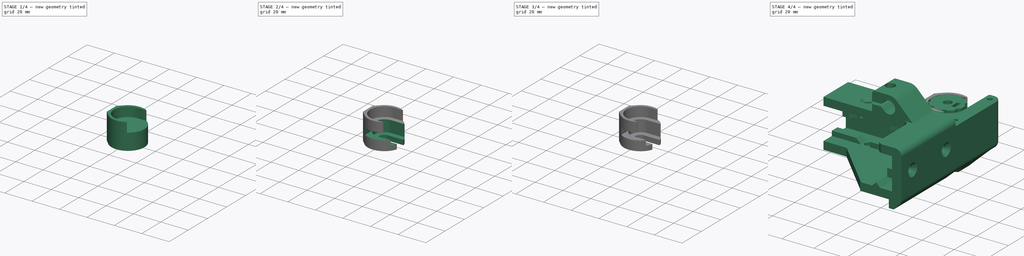
[diagram: build sequence overview — one tinted view per stage of 4, left to right]
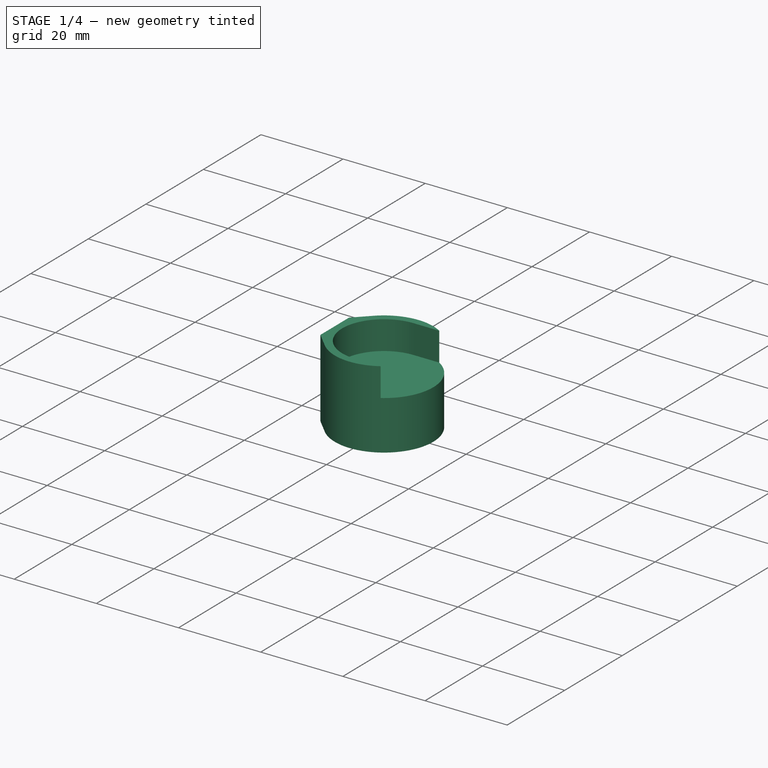
[diagram: stage 1 of 4 — iso view after this stage's code; geometry added in this stage tinted green]
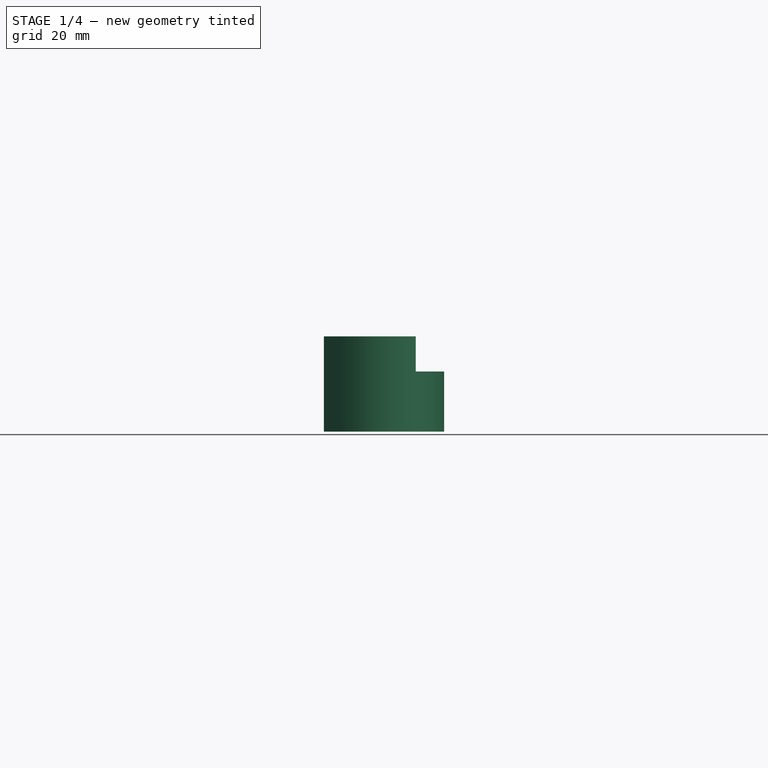
[diagram: stage 1 of 4 — front view after this stage's code; geometry added in this stage tinted green]
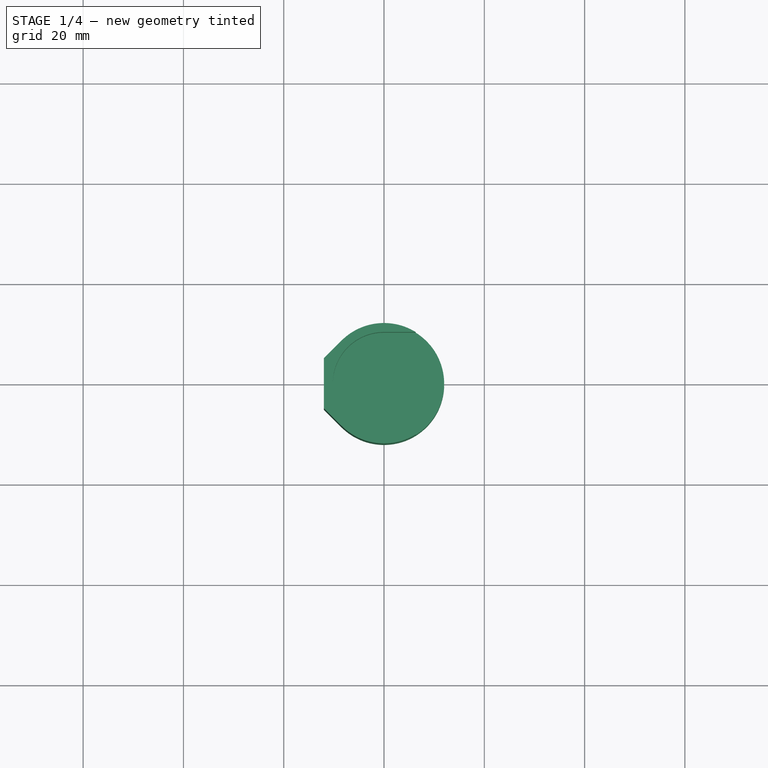
[diagram: stage 1 of 4 — top view after this stage's code; geometry added in this stage tinted green]
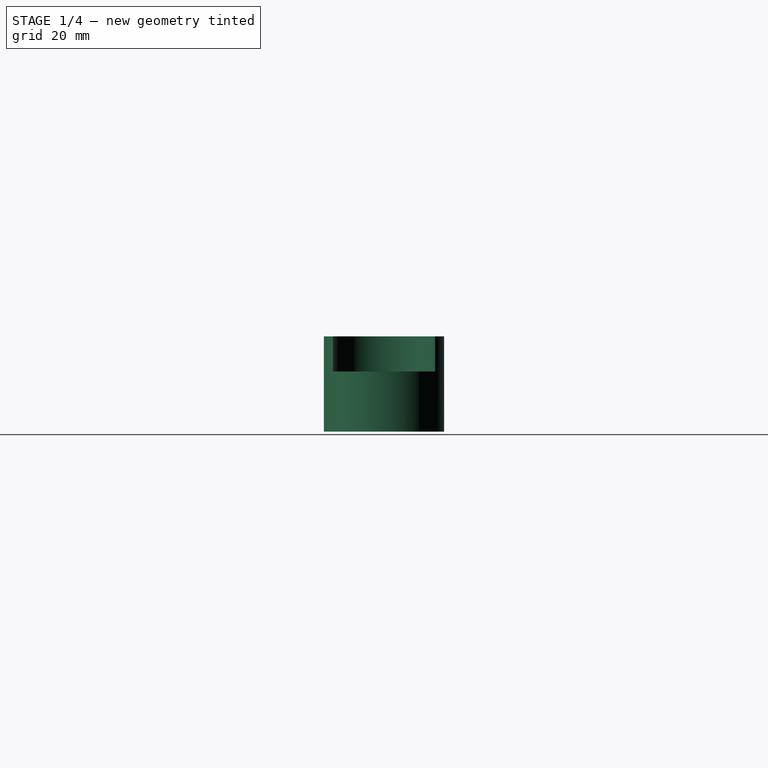
[diagram: stage 1 of 4 — right view after this stage's code; geometry added in this stage tinted green]
FCSTD DOCUMENT  (FreeCAD 0.16RUnknown)
Label: NEMAChanger
License: All rights reserved
LicenseURL: http://en.wikipedia.org/wiki/All_rights_reserved
objects: Sketcher::SketchObject×5, PartDesign::Pocket×4, App::DocumentObjectGroup×3, Part::FeaturePython×3, Part::Fillet×2, Spreadsheet::Sheet×1, PartDesign::Pad×1
note: 20 computed .brp shape members not serialized (recipe doc carries the construction recipe); baked Part::Feature solids carry a one-line shape summary decoded from their .brp

FEATURE [App::DocumentObjectGroup] Group002  label="Reference"
  Group = -> [NEMAPulley_01,BackCorner_01]
FEATURE [Sketcher::SketchObject] Sketch  label="Base"
  Placement = pos=(0,0,0) rot=(0,0,-1;1.5708rad)
  sketch-geometry (4):
    g0: ArcOfCircle CenterX=0 CenterY=0 CenterZ=0 NormalX=0 NormalY=0 NormalZ=1 Radius=12 StartAngle=5.49779 EndAngle=10.2102
    g1: LineSegment StartX=-8.48531 StartY=-8.48526 StartZ=0 EndX=-4.97056 EndY=-12 EndZ=0
    g2: LineSegment StartX=-4.97056 StartY=-12 StartZ=0 EndX=4.97056 EndY=-12 EndZ=0
    g3: LineSegment StartX=4.97056 StartY=-12 StartZ=0 EndX=8.48531 EndY=-8.48526 EndZ=0
  constraints (12):
    c: Coincident(g1,g2)
    c: Coincident(g2,g3)
    c: Horizontal(g2)
    c: Coincident(g0,g1)
    c: Coincident(g0,g3)
    c: Tangent(g3,g0)
    c: Tangent(g2,g0)
    c: Tangent(g1,g0)
    c: Perpendicular(g3,g1)
    c: Angle(g3,g2) = 2.35619
    c: Coincident(g0,g-1)
    c: Radius(g0) = 12
FEATURE [PartDesign::Pad] Pad  label="Base001"
  Length = 19
  Length2 = 100
  Placement = pos=(0,0,0) rot=(0,0,-1;1.5708rad)
  Reversed = true
  Sketch = -> Sketch
  Type = 0
FEATURE [Sketcher::SketchObject] Sketch002  label="BigSpace"
  Placement = pos=(0,0,0) rot=(0,0,-1;1.5708rad)
  Support = -> Pad [Face5]
  sketch-geometry (4):
    g0: ArcOfCircle CenterX=0 CenterY=0 CenterZ=0 NormalX=0 NormalY=0 NormalZ=1 Radius=10.2 StartAngle=3.14159 EndAngle=6.28319
    g1: LineSegment StartX=-10.2 StartY=1.84944e-07 StartZ=0 EndX=-10.2 EndY=20 EndZ=0
    g2: LineSegment StartX=-10.2 StartY=20 StartZ=0 EndX=10.2 EndY=20 EndZ=0
    g3: LineSegment StartX=10.2 StartY=20 StartZ=0 EndX=10.2 EndY=-2.64482e-07 EndZ=0
  constraints (12):
    c: Coincident(g0,g-1)
    c: Coincident(g1,g2)
    c: Coincident(g2,g3)
    c: Coincident(g0,g3)
    c: Coincident(g0,g1)
    c: Tangent(g0,g1)
    c: Tangent(g3,g0)
    c: Vertical(g3)
    c: Vertical(g1)
    c: Horizontal(g2)
    c: Radius(g0) = 10.2
    c: DistanceY(g1) = 20
FEATURE [PartDesign::Pocket] Pocket  label="BigSpace001"
  Length = 7
  Placement = pos=(0,0,0) rot=(0,0,-1;1.5708rad)
  Sketch = -> Sketch002
  Type = 0
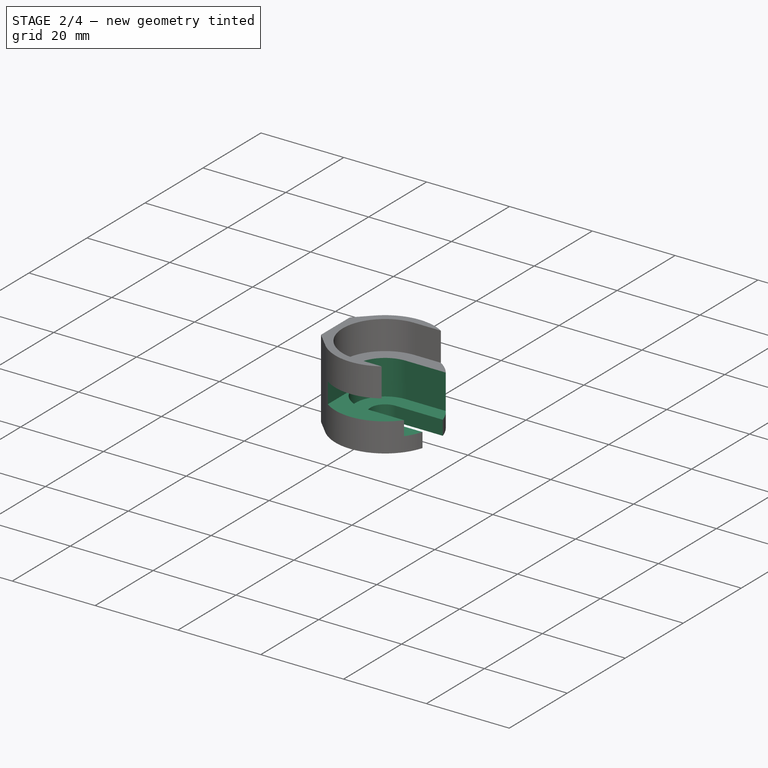
[diagram: stage 2 of 4 — iso view after this stage's code; geometry added in this stage tinted green]
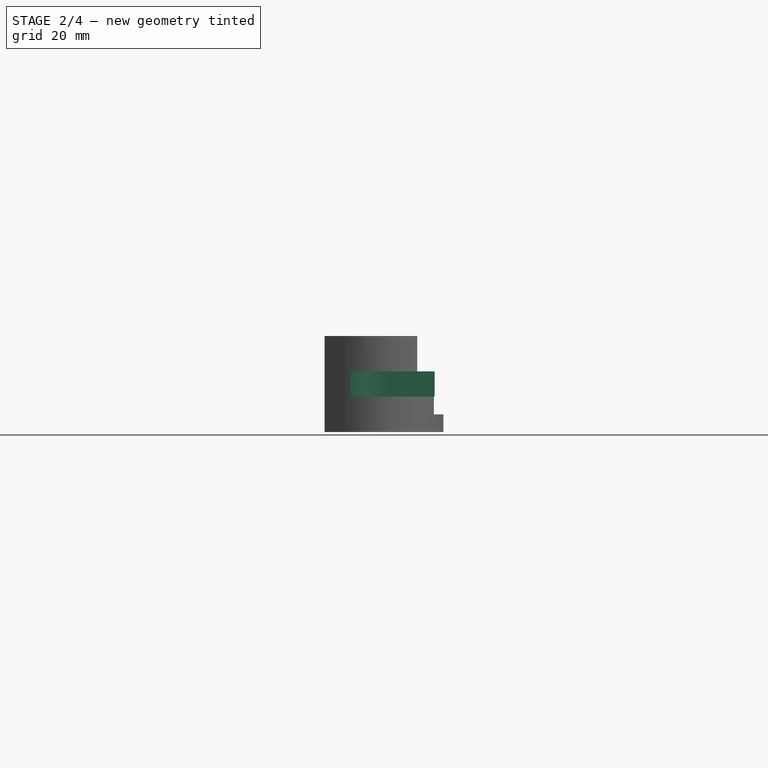
[diagram: stage 2 of 4 — front view after this stage's code; geometry added in this stage tinted green]
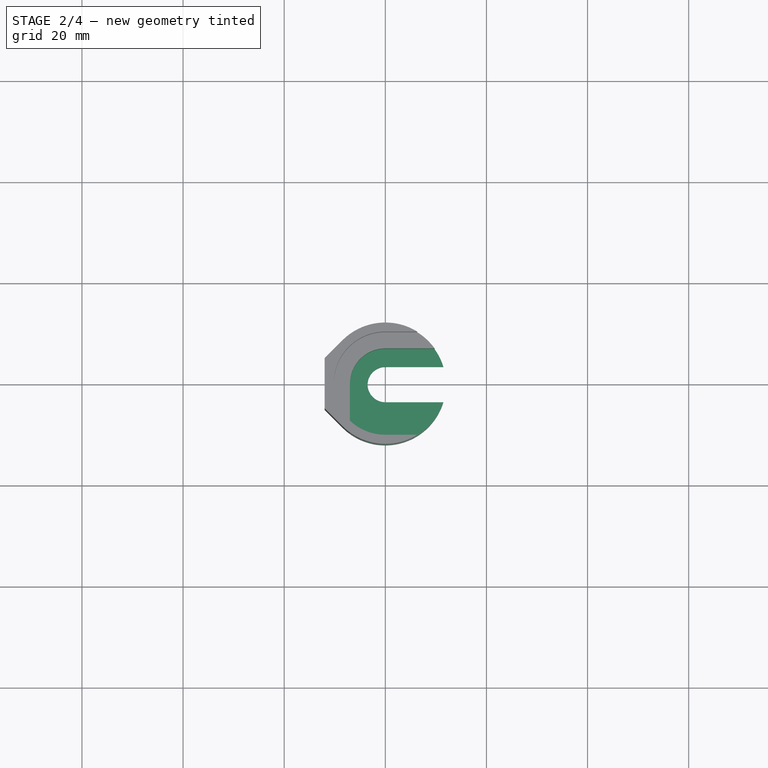
[diagram: stage 2 of 4 — top view after this stage's code; geometry added in this stage tinted green]
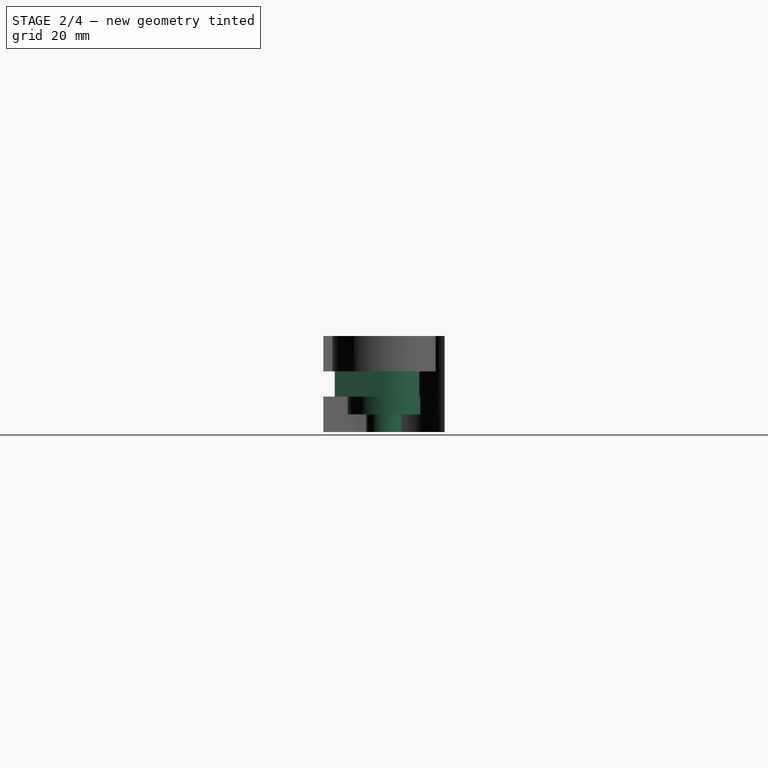
[diagram: stage 2 of 4 — right view after this stage's code; geometry added in this stage tinted green]
FEATURE [Sketcher::SketchObject] Sketch003  label="StringSpace"
  Placement = pos=(0,0,-7) rot=(0,0,-1;1.5708rad)
  Support = -> Pocket [Face4]
  sketch-geometry (5):
    g0: ArcOfCircle CenterX=0 CenterY=0 CenterZ=0 NormalX=0 NormalY=0 NormalZ=1 Radius=7 StartAngle=3.14159 EndAngle=4.71239
    g1: LineSegment StartX=-7 StartY=-7.5972e-08 StartZ=0 EndX=-7 EndY=20 EndZ=0
    g2: LineSegment StartX=-7 StartY=20 StartZ=0 EndX=20 EndY=20 EndZ=0
    g3: LineSegment StartX=20 StartY=20 StartZ=0 EndX=20 EndY=-7 EndZ=0
    g4: LineSegment StartX=20 StartY=-7 StartZ=0 EndX=-1.06699e-07 EndY=-7 EndZ=0
  constraints (15):
    c: Coincident(g1,g2)
    c: Coincident(g2,g3)
    c: Coincident(g3,g4)
    c: Coincident(g0,g4)
    c: Coincident(g0,g1)
    c: Coincident(g0,g-1)
    c: Tangent(g4,g0)
    c: Tangent(g1,g0)
    c: Vertical(g1)
    c: Vertical(g3)
    c: Horizontal(g4)
    c: Horizontal(g2)
    c: DistanceX(g2) = 20
    c: DistanceY(g2) = 20
    c: Radius(g0) = 7
FEATURE [PartDesign::Pocket] Pocket001  label="StringSpace001"
  Length = 5
  Placement = pos=(0,0,0) rot=(0,0,-1;1.5708rad)
  Sketch = -> Sketch003
  Type = 0
FEATURE [Sketcher::SketchObject] Sketch004  label="SmallSpace"
  Placement = pos=(0,0,-12) rot=(0,0,-1;1.5708rad)
  Support = -> Pocket001 [Face6]
  sketch-geometry (4):
    g0: ArcOfCircle CenterX=0 CenterY=0 CenterZ=0 NormalX=0 NormalY=0 NormalZ=1 Radius=7.2 StartAngle=3.14159 EndAngle=6.28319
    g1: LineSegment StartX=-7.2 StartY=-2.74602e-07 StartZ=0 EndX=-7.2 EndY=20 EndZ=0
    g2: LineSegment StartX=-7.2 StartY=20 StartZ=0 EndX=7.2 EndY=20 EndZ=0
    g3: LineSegment StartX=7.2 StartY=20 StartZ=0 EndX=7.2 EndY=-6.2666e-08 EndZ=0
  constraints (12):
    c: Coincident(g0,g-1)
    c: Coincident(g1,g2)
    c: Coincident(g2,g3)
    c: Horizontal(g2)
    c: Vertical(g3)
    c: Vertical(g1)
    c: Coincident(g0,g1)
    c: Coincident(g0,g3)
    c: Tangent(g0,g3)
    c: Tangent(g1,g0)
    c: DistanceY(g2) = 20
    c: Radius(g0) = 7.2
FEATURE [PartDesign::Pocket] Pocket002  label="SmallSpace001"
  Length = 3.5
  Placement = pos=(0,0,0) rot=(0,0,-1;1.5708rad)
  Sketch = -> Sketch004
  Type = 0
FEATURE [Sketcher::SketchObject] Sketch005  label="ShaftSpace"
  Placement = pos=(0,0,-15.5) rot=(0,0,-1;1.5708rad)
  Support = -> Pocket002 [Face8]
  sketch-geometry (4):
    g0: ArcOfCircle CenterX=0 CenterY=0 CenterZ=0 NormalX=0 NormalY=0 NormalZ=1 Radius=3.5 StartAngle=3.14159 EndAngle=6.28319
    g1: LineSegment StartX=-3.5 StartY=-5.34048e-07 StartZ=0 EndX=-3.5 EndY=20 EndZ=0
    g2: LineSegment StartX=-3.5 StartY=20 StartZ=0 EndX=3.5 EndY=20 EndZ=0
    g3: LineSegment StartX=3.5 StartY=20 StartZ=0 EndX=3.5 EndY=8.2209e-08 EndZ=0
  constraints (12):
    c: Coincident(g0,g-1)
    c: Coincident(g1,g2)
    c: Coincident(g2,g3)
    c: Coincident(g0,g3)
    c: Coincident(g0,g1)
    c: Tangent(g1,g0)
    c: Tangent(g3,g0)
    c: Vertical(g3)
    c: Vertical(g1)
    c: Horizontal(g2)
    c: DistanceY(g2) = 20
    c: Radius(g0) = 3.5
FEATURE [PartDesign::Pocket] Pocket003  label="ShaftSpace001"
  Length = 5
  Placement = pos=(0,0,0) rot=(0,0,-1;1.5708rad)
  Sketch = -> Sketch005
  Type = 1
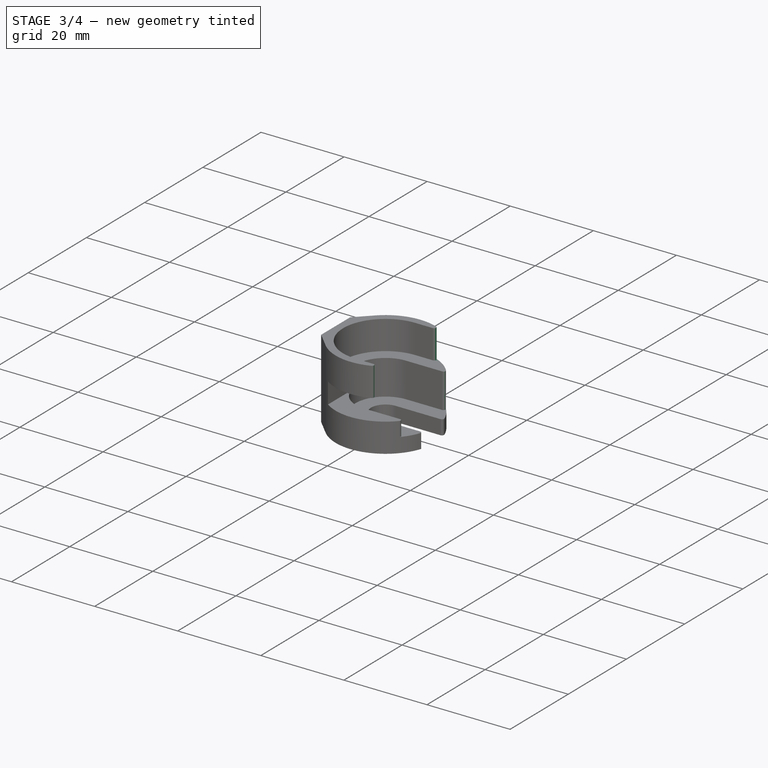
[diagram: stage 3 of 4 — iso view after this stage's code; geometry added in this stage tinted green]
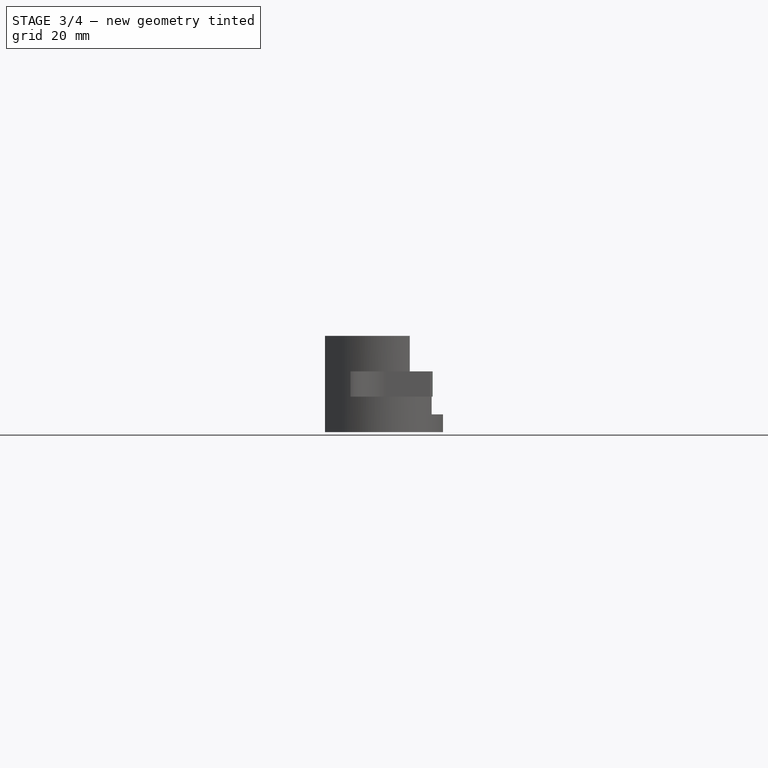
[diagram: stage 3 of 4 — front view after this stage's code; geometry added in this stage tinted green]
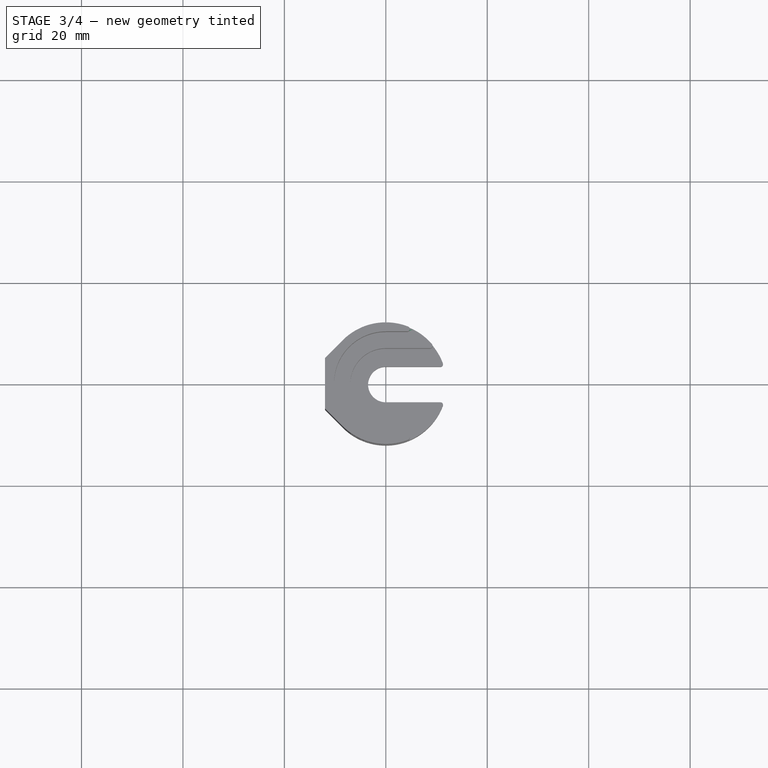
[diagram: stage 3 of 4 — top view after this stage's code; geometry added in this stage tinted green]
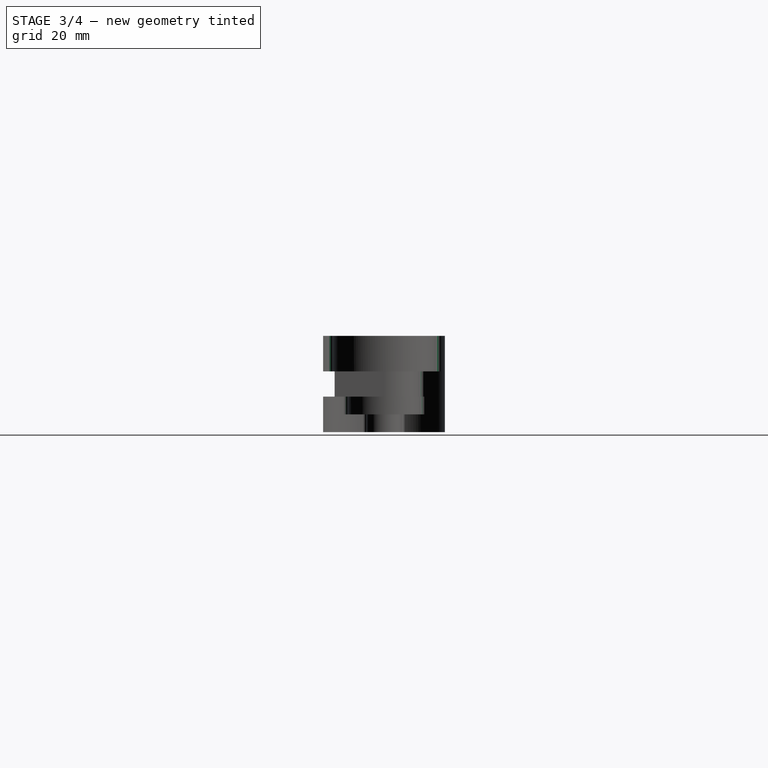
[diagram: stage 3 of 4 — right view after this stage's code; geometry added in this stage tinted green]
FEATURE [Part::Fillet] Fillet
  Base = -> Pocket003
  Edges = 6 edges r=0.5: [Edge2,Edge6,Edge8,Edge47,Edge48,Edge52]
FEATURE [Part::Fillet] Fillet001  label="Fillets"
  Base = -> Fillet
  Edges = 1 edges r=0.5: [Edge63]
FEATURE [App::DocumentObjectGroup] Group  label="src"
  Group = -> [Pad,Pocket,Pocket001,Pocket002,Pocket003,Fillet001]
FEATURE [Part::FeaturePython] Clone  label="NEMAChanger"  # Draft clone (typed FeaturePython)
  Objects = -> [Fillet001]
  Scale = (1,1,1)
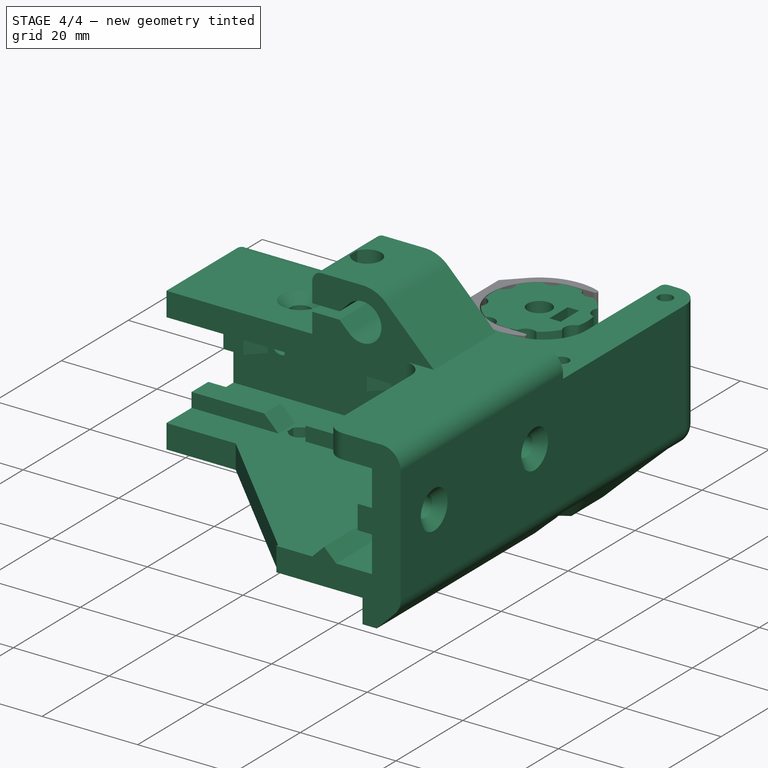
[diagram: stage 4 of 4 — iso view after this stage's code; geometry added in this stage tinted green]
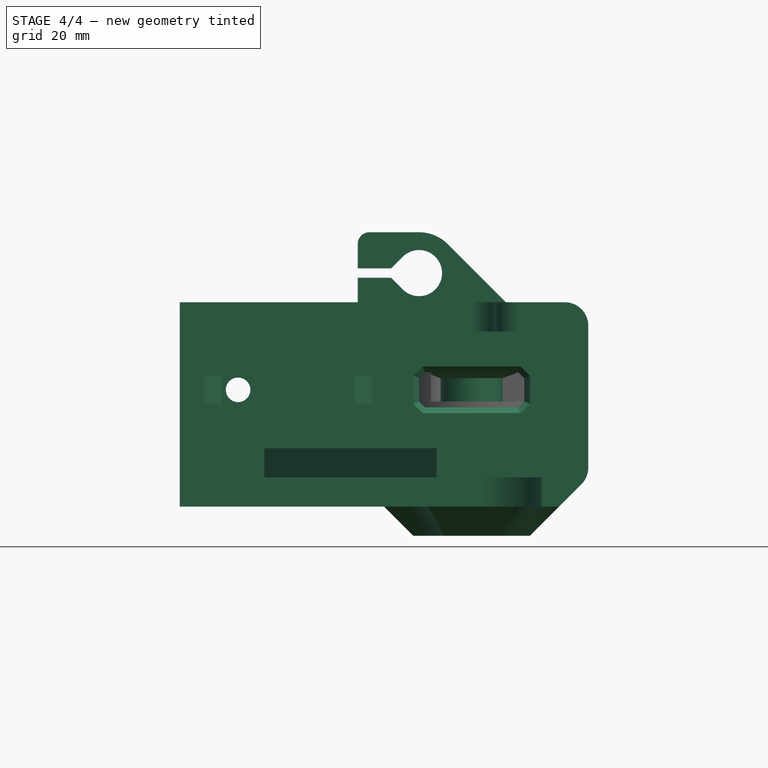
[diagram: stage 4 of 4 — front view after this stage's code; geometry added in this stage tinted green]
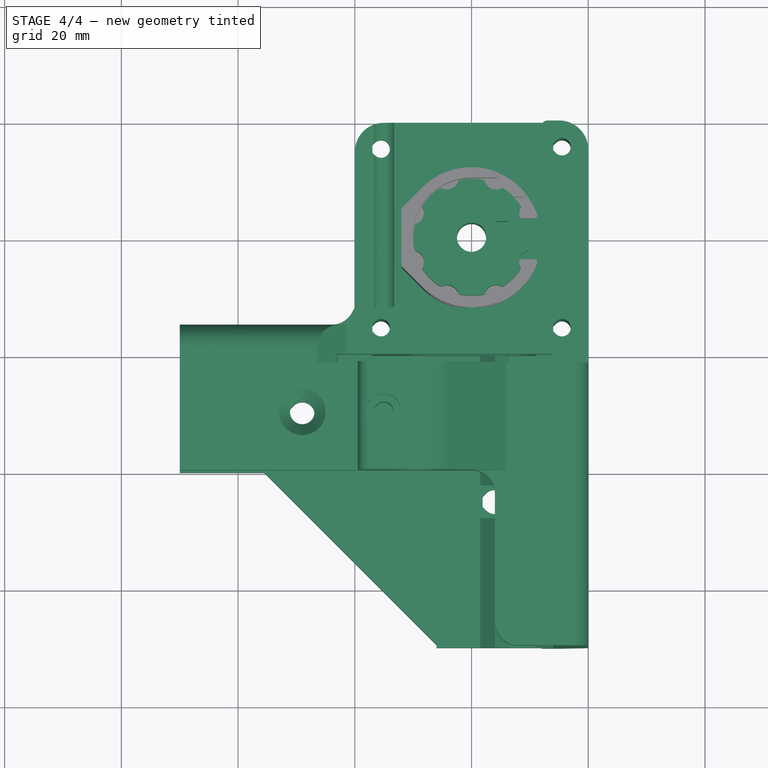
[diagram: stage 4 of 4 — top view after this stage's code; geometry added in this stage tinted green]
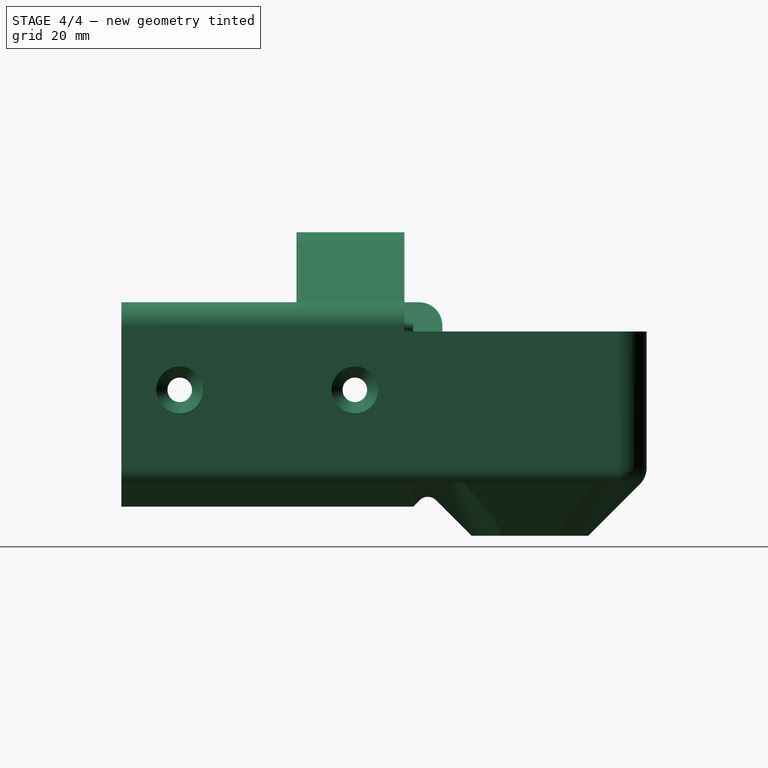
[diagram: stage 4 of 4 — right view after this stage's code; geometry added in this stage tinted green]
FEATURE [Spreadsheet::Sheet] Spreadsheet  label="pars"
  cells = A1=Bolts and Nuts; B1=Value; D1=Components; E1=Value; A2=Thread Tight Tolerance (Radius, ratio); B2(ThrTighRatio)=0.96; D2=Tight Cilinder Tolerances (Radius, mm); E2(CilTight)=0.1; A3=Thread Tight Tolerance (Radius, mm); B3(ThrTightmm)=0.1; D3=Loose Cilinder Tolerances (Radius, mm); E3(CilLoose)=0.1; A5=Nut Slot Width Clearance (mm); B5(NutWidthClearmm)=0.1; A6=Nut Slot Thickess Clearance (mm); B6(NutThickClearmm)=0.1; A13=Particular parameters; B13=Value; A14=O-Ring Tightness; B14(OTight)=0.1; A15=O-Ring Pressure; B15(OPress)=0.4
FEATURE [App::DocumentObjectGroup] Group001  label="Component_src"
FEATURE [Part::FeaturePython] NEMAPulley_01  label="NEMAPulley"  # a2plus imported part (geometry in sourceFile) (typed FeaturePython)
  Placement = pos=(0,0,0) rot=(1,0,0;3.14159rad)
  fixedPosition = true
  sourceFile = ./../Mechanical/src/MainFrame/NEMAPulley.fcstd
  timeLastImport = 1.541e+09
  updateColors = true
FEATURE [Part::FeaturePython] BackCorner_01  label="BackCorner"  # a2plus imported part (geometry in sourceFile) (typed FeaturePython)
  fixedPosition = false
  sourceFile = ./../Mechanical/src/MainFrame/BackCorner.fcstd
  timeLastImport = 1.541e+09
  updateColors = true
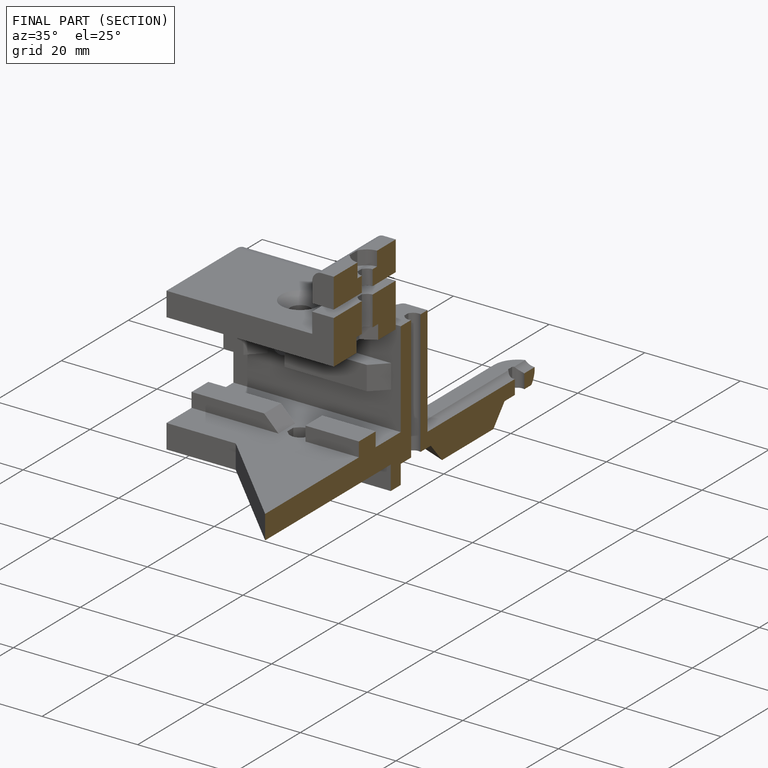
[diagram: finished part — half-section view (interior)]
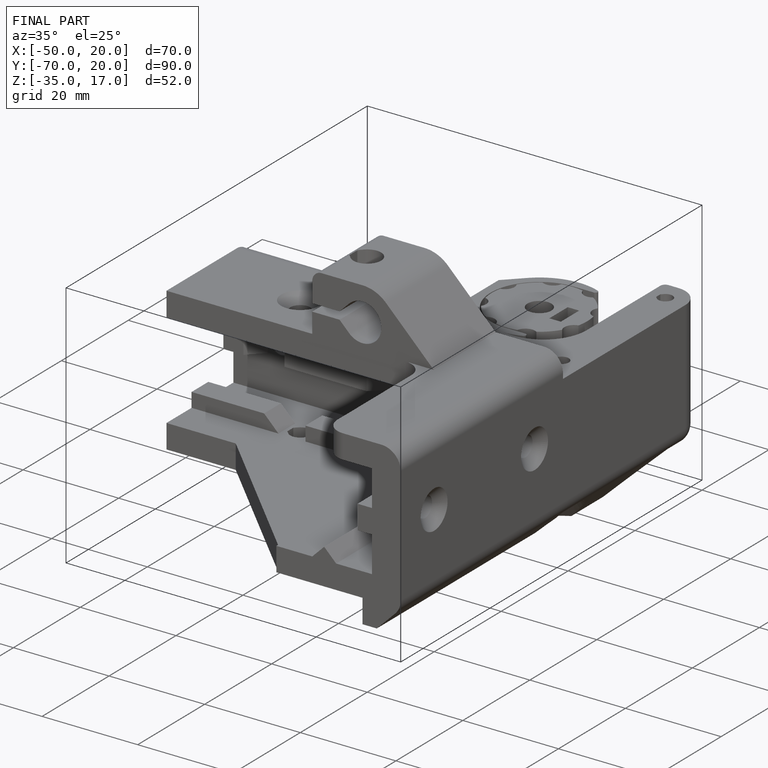
[diagram: finished part — iso view with bounding-box wireframe]
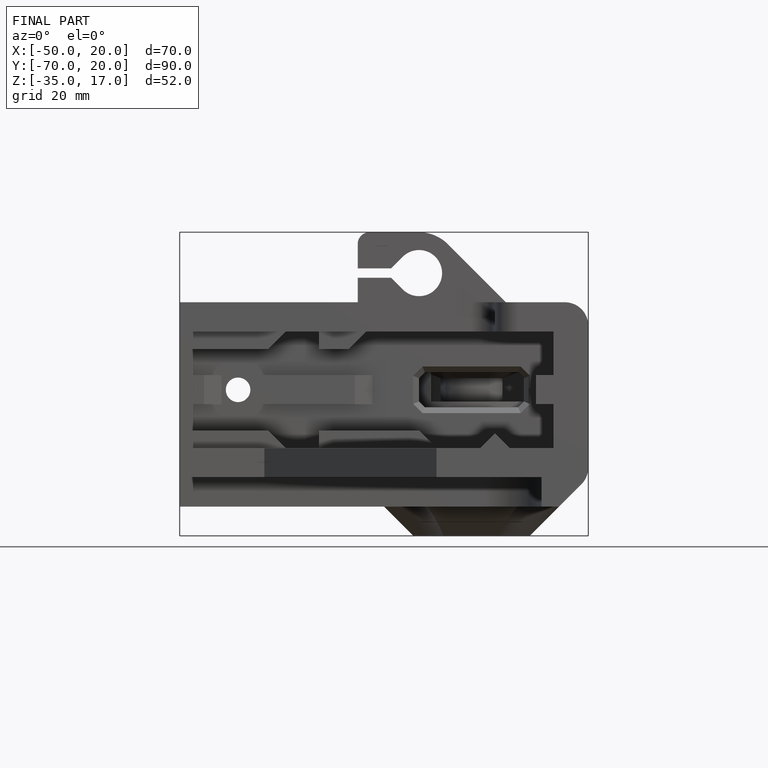
[diagram: finished part — front view with bounding-box wireframe]
